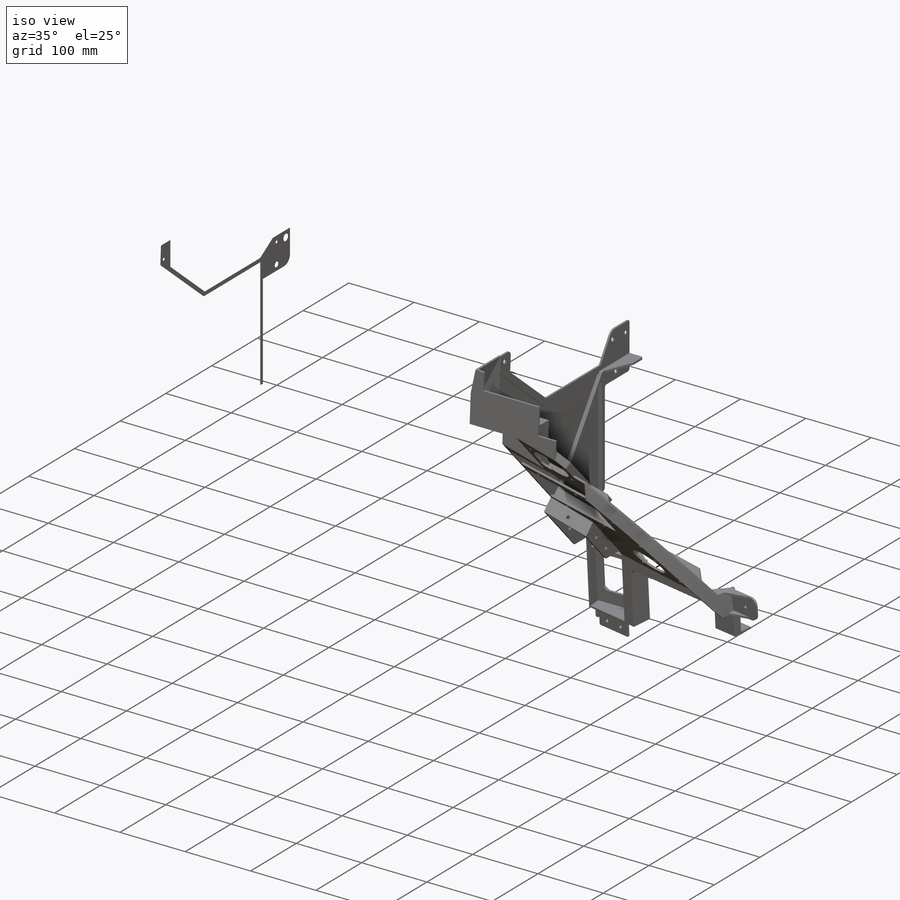
[diagram: iso view]
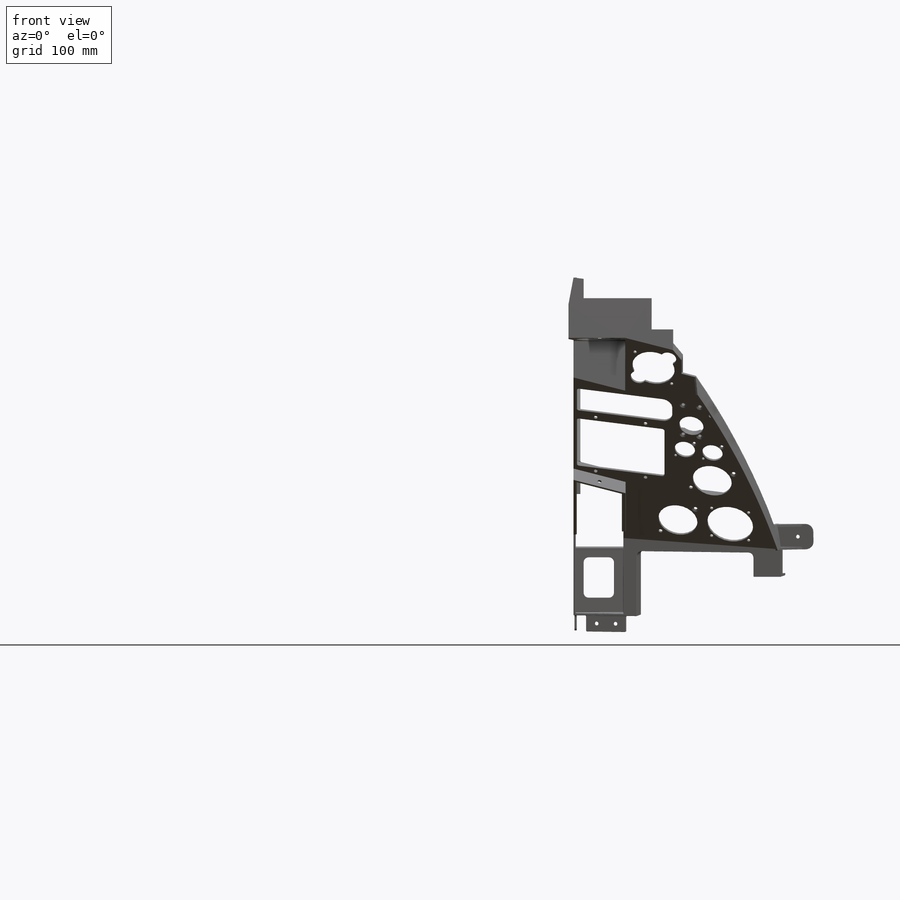
[diagram: front view]
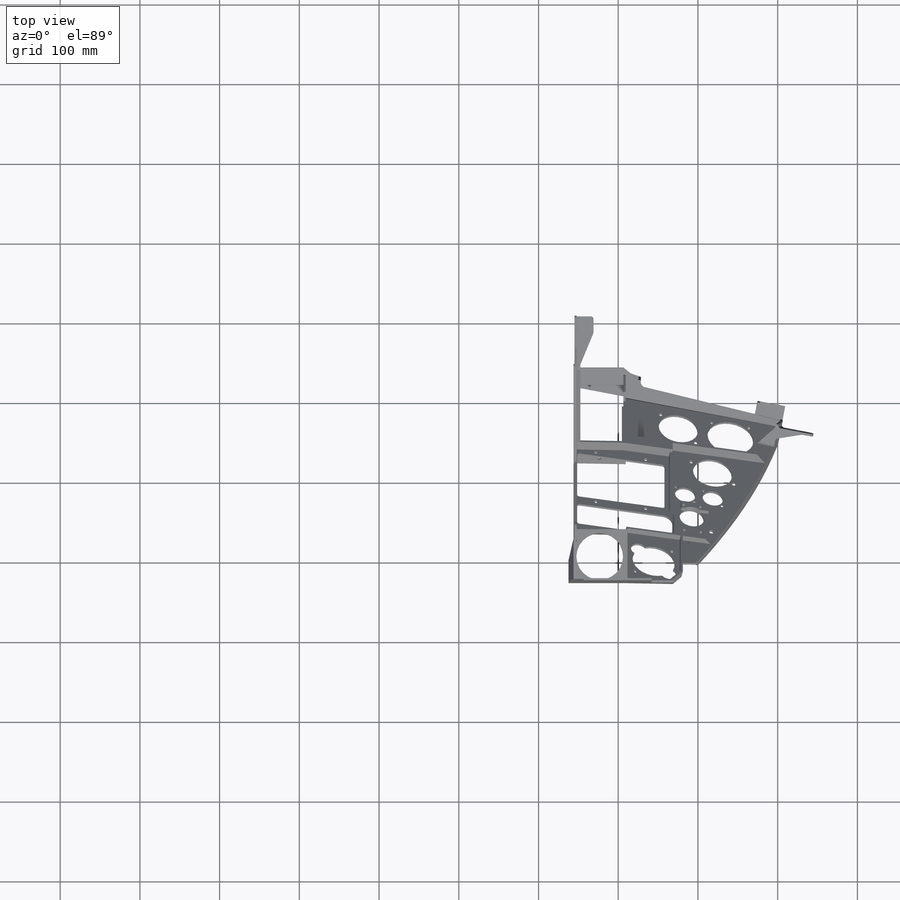
[diagram: top view]
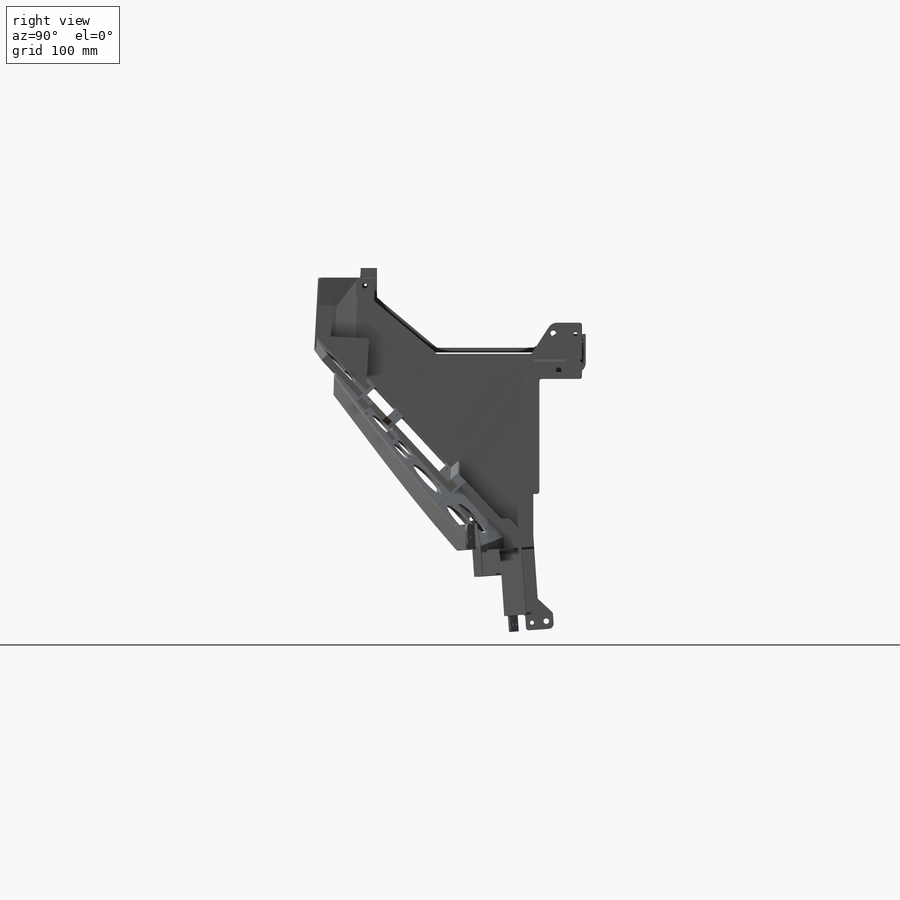
[diagram: right view]
SOLIDWORKS PART (.sldprt)
format: sldprt  version: not decoded by parser v0  size: 5,853,184 bytes
history: native  units: mm
features: plane x19, sketch x8, extrude x7, material x1 + 1 further entry (+29 scaffold rows collapsed; 3 parser-record rows omitted)
feature tree (68):
  scaffold x29  (default folders/planes/origin — collapsed)
  material  "Material <not specified>"
  plane  "Front Plane-Feathers-2"
  plane  "Top Plane-Feathers-2"
  plane  "Right Plane-Feathers-2"
  plane  "Plane Center-Feathers-2"
  plane  "Plane1-Feathers-2"
  plane  "Plane3-Feathers-2"
  plane  "Plane4-Feathers-2"
  plane  "Plane66-Feathers-2"
  plane  "Plane2-Feathers-2"
  plane  "Plane65-Feathers-2"
  plane  "Plane64-Feathers-2"
  plane  "Plane63-Feathers-2"
  plane  "Plane67-Feathers-2"
  plane  "Plane68-Feathers-2"
  plane  "Plane69-Feathers-2"
  plane  "Plane70-Feathers-2"
  plane  "Plane71 (Front)-Feathers-2"
  plane  "Plane Top Rail-Feathers-2"
  plane  "BS Center Plane-Feathers-2"
  "Feathers-2"
  parser-record x3  (decoder bookkeeping rows leaked as tree rows — omitted from the tree; the rows remain in map.json)
  sketch  "Sketch2"  dims[c1.D1=19.05mm c1.D2=101.6mm c2.D1=19.05mm c2.D2=101.6mm]
  extrude  "Extrude1"  Depth=50.8mm
  sketch  "Sketch3"  dims[D1=0.0mm]
  extrude  "Extrude2"  Depth=50.8mm
  sketch  "Sketch5"  dims[D1=101.6mm]
  extrude  "Extrude4"  [1 undecoded]
  sketch  "Sketch6"  dims[D1=101.6mm]
  extrude  "Extrude5"  [1 undecoded]
  sketch  "Sketch7"  dims[D1=50.8mm D2=50.8mm D3=101.6mm]
  extrude  "Extrude6"  [1 undecoded]
  sketch  "Sketch8"  dims[D1=2.54mm D2=50.8mm]
  extrude  "Extrude7"  Depth=101.6mm
  sketch  "Sketch9"
  extrude  "Extrude8"  Depth=101.6mm
  sketch  "Sketch12"
decode coverage: 10 of 15 modeling features carry decoded parameters; 1 rows unclassified (native names shown)
note: 3 parameter values undecoded
summary: no parameter record found for 3 features
note: suppression state not decoded; provenance and decode notes live in map.json
